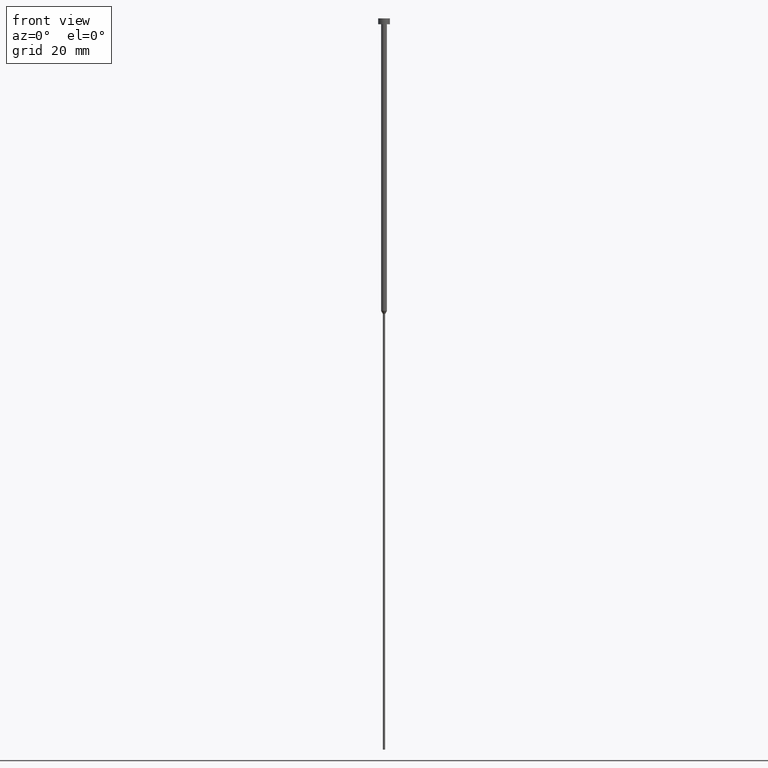
[diagram: clean part render]
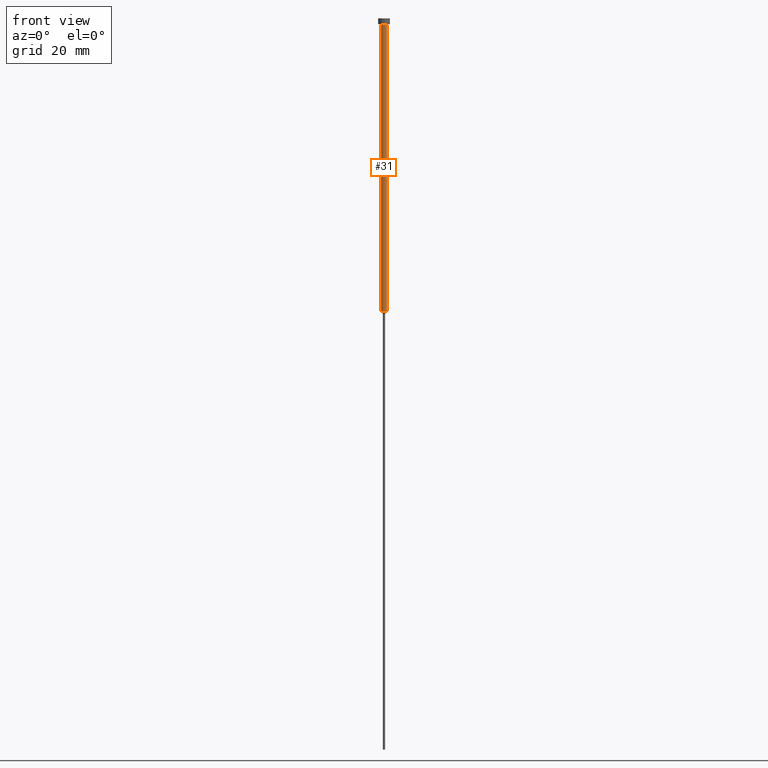
[diagram: same view with one face highlighted and labeled with its STEP entity id]
A machine part, front view. The second image highlights one B-rep face of the part: STEP entity #31.
In plain terms, the highlighted cylindrical surface (edge-blend (fillet) strip) has radius 1 mm, axis along (-0, -0, 1).
Its self-contained STEP definition (entity closure, byte-faithful):
#2 = DIRECTION ( 'NONE',  ( -0.000000000000000000, -0.000000000000000000, 1.000000000000000000 ) ) ;
#12 = DIRECTION ( 'NONE',  ( -0.000000000000000000, -0.000000000000000000, 1.000000000000000000 ) ) ;
#15 = CARTESIAN_POINT ( 'NONE',  ( 1.000000000000003331, 0.000000000000000000, 0.000000000000000000 ) ) ;
#25 = VERTEX_POINT ( 'NONE', #141 ) ;
#31 = ADVANCED_FACE ( 'NONE', ( #115 ), #201, .T. ) ;
#45 = DIRECTION ( 'NONE',  ( 1.000000000000000000, 0.000000000000000000, 0.000000000000000000 ) ) ;
#61 = VECTOR ( 'NONE', #279, 1000.000000000000000 ) ;
#62 = EDGE_CURVE ( 'NONE', #25, #134, #259, .T. ) ;
#68 = CIRCLE ( 'NONE', #182, 1.000000000000003109 ) ;
#74 = CARTESIAN_POINT ( 'NONE',  ( 0.000000000000000000, 0.000000000000000000, -2.000000000000000444 ) ) ;
#80 = VERTEX_POINT ( 'NONE', #307 ) ;
#95 = DIRECTION ( 'NONE',  ( -0.000000000000000000, -0.000000000000000000, 1.000000000000000000 ) ) ;
#106 = VERTEX_POINT ( 'NONE', #262 ) ;
#108 = ORIENTED_EDGE ( 'NONE', *, *, #166, .F. ) ;
#115 = FACE_OUTER_BOUND ( 'NONE', #322, .T. ) ;
#118 = CARTESIAN_POINT ( 'NONE',  ( 0.000000000000000000, 0.000000000000000000, 0.000000000000000000 ) ) ;
#134 = VERTEX_POINT ( 'NONE', #174 ) ;
#141 = CARTESIAN_POINT ( 'NONE',  ( -1.000000000000003109, 1.224646799147356905E-16, -100.0000000000000000 ) ) ;
#163 = AXIS2_PLACEMENT_3D ( 'NONE', #118, #2, #328 ) ;
#166 = EDGE_CURVE ( 'NONE', #134, #80, #176, .T. ) ;
#174 = CARTESIAN_POINT ( 'NONE',  ( -1.000000000000003553, 1.224646799147357398E-16, -2.000000000000000444 ) ) ;
#176 = CIRCLE ( 'NONE', #242, 1.000000000000003553 ) ;
#182 = AXIS2_PLACEMENT_3D ( 'NONE', #238, #95, #183 ) ;
#183 = DIRECTION ( 'NONE',  ( 1.000000000000000000, 0.000000000000000000, 0.000000000000000000 ) ) ;
#201 = CYLINDRICAL_SURFACE ( 'NONE', #163, 1.000000000000003331 ) ;
#210 = EDGE_CURVE ( 'NONE', #106, #80, #346, .T. ) ;
#238 = CARTESIAN_POINT ( 'NONE',  ( 0.000000000000000000, 0.000000000000000000, -100.0000000000000000 ) ) ;
#242 = AXIS2_PLACEMENT_3D ( 'NONE', #74, #338, #45 ) ;
#254 = CARTESIAN_POINT ( 'NONE',  ( -1.000000000000003331, 1.224646799147357151E-16, 0.000000000000000000 ) ) ;
#259 = LINE ( 'NONE', #254, #61 ) ;
#262 = CARTESIAN_POINT ( 'NONE',  ( 1.000000000000003109, 0.000000000000000000, -100.0000000000000000 ) ) ;
#266 = VECTOR ( 'NONE', #12, 1000.000000000000000 ) ;
#279 = DIRECTION ( 'NONE',  ( -0.000000000000000000, -0.000000000000000000, 1.000000000000000000 ) ) ;
#289 = EDGE_CURVE ( 'NONE', #25, #106, #68, .T. ) ;
#301 = ORIENTED_EDGE ( 'NONE', *, *, #289, .T. ) ;
#307 = CARTESIAN_POINT ( 'NONE',  ( 1.000000000000003553, 0.000000000000000000, -2.000000000000000444 ) ) ;
#322 = EDGE_LOOP ( 'NONE', ( #327, #301, #351, #108 ) ) ;
#327 = ORIENTED_EDGE ( 'NONE', *, *, #62, .F. ) ;
#328 = DIRECTION ( 'NONE',  ( 1.000000000000000000, 0.000000000000000000, 0.000000000000000000 ) ) ;
#338 = DIRECTION ( 'NONE',  ( -0.000000000000000000, -0.000000000000000000, 1.000000000000000000 ) ) ;
#346 = LINE ( 'NONE', #15, #266 ) ;
#351 = ORIENTED_EDGE ( 'NONE', *, *, #210, .T. ) ;